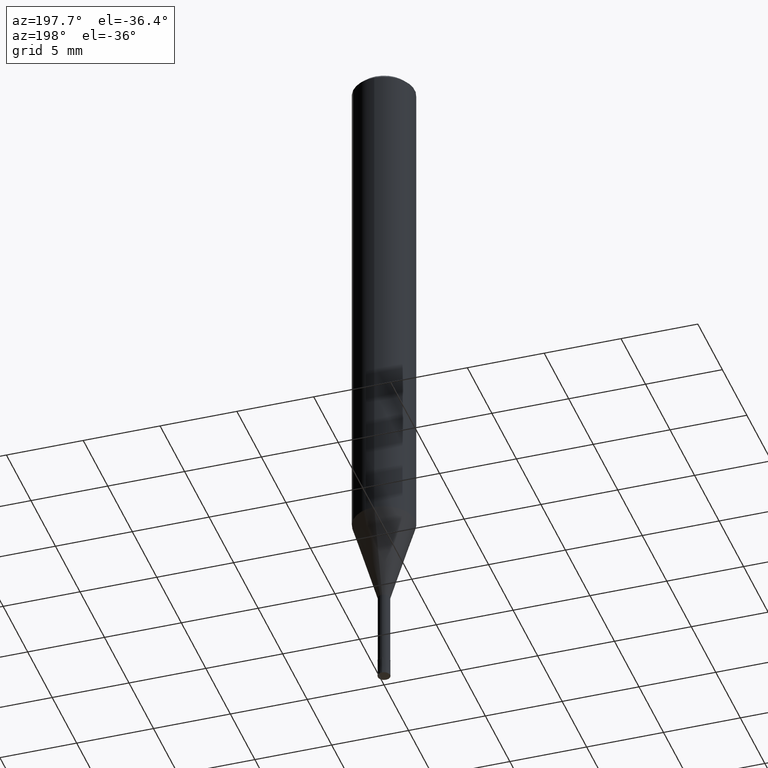
[diagram: clean part render]
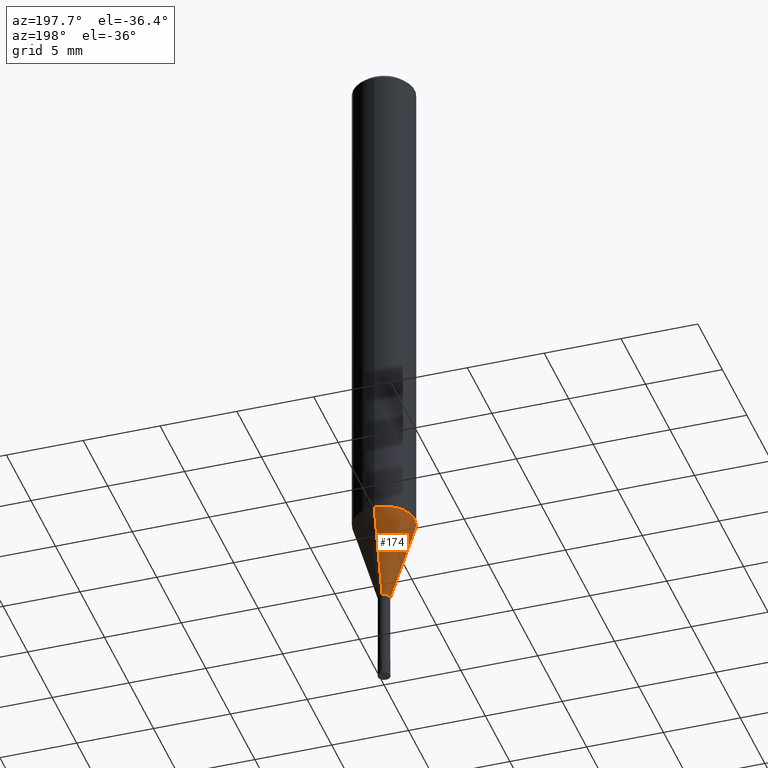
[diagram: same view with one face highlighted and labeled with its STEP entity id]
A machine part, auxiliary view. The second image highlights one B-rep face of the part: STEP entity #174.
In plain terms, the highlighted conical surface has half-angle 15.999 deg.
Its self-contained STEP definition (entity closure, byte-faithful):
#96=EDGE_CURVE('',#176,#168,#234,.T.);
#106=VERTEX_POINT('',#245);
#128=EDGE_CURVE('',#106,#206,#269,.T.);
#140=EDGE_CURVE('',#206,#176,#282,.T.);
#160=EDGE_CURVE('',#106,#168,#304,.T.);
#168=VERTEX_POINT('',#313);
#174=ADVANCED_FACE('',(#319),#320,.T.);
#176=VERTEX_POINT('',#322);
#206=VERTEX_POINT('',#359);
#234=LINE('',#381,#382);
#245=CARTESIAN_POINT('',(4.77535247673036E-017,-0.38995,-39.0));
#269=LINE('',#425,#426);
#282=CIRCLE('',#441,1.99995);
#304=CIRCLE('',#471,0.38995);
#313=CARTESIAN_POINT('',(0.0,0.38995,-39.0));
#319=FACE_OUTER_BOUND('',#489,.T.);
#320=CONICAL_SURFACE('',#490,1.19495,0.279240281890545);
#322=CARTESIAN_POINT('',(0.0,1.99995,-33.385));
#359=CARTESIAN_POINT('',(2.44915147732706E-016,-1.99995,-33.385));
#381=CARTESIAN_POINT('',(-1.46334336250005E-016,1.19495,-36.1925));
#382=VECTOR('',#551,1.0);
#425=CARTESIAN_POINT('',(1.46334336250005E-016,-1.19495,-36.1925));
#426=VECTOR('',#594,1.0);
#441=AXIS2_PLACEMENT_3D('',#605,#606,#607);
#471=AXIS2_PLACEMENT_3D('',#635,#636,#637);
#489=EDGE_LOOP('',(#651,#652,#653,#654));
#490=AXIS2_PLACEMENT_3D('',#655,#656,#657);
#551=DIRECTION('',(3.37532662235176E-017,-0.275625437661361,-0.961265113334497));
#594=DIRECTION('',(3.37532662235176E-017,-0.275625437661361,0.961265113334497));
#605=CARTESIAN_POINT('',(0.0,0.0,-33.385));
#606=DIRECTION('',(0.0,0.0,-1.0));
#607=DIRECTION('',(0.0,1.0,0.0));
#635=CARTESIAN_POINT('',(0.0,0.0,-39.0));
#636=DIRECTION('',(0.0,0.0,-1.0));
#637=DIRECTION('',(0.0,1.0,0.0));
#651=ORIENTED_EDGE('',*,*,#96,.T.);
#652=ORIENTED_EDGE('',*,*,#160,.F.);
#653=ORIENTED_EDGE('',*,*,#128,.T.);
#654=ORIENTED_EDGE('',*,*,#140,.T.);
#655=CARTESIAN_POINT('',(0.0,0.0,-36.1925));
#656=DIRECTION('',(-0.0,-0.0,1.0));
#657=DIRECTION('',(0.0,1.0,0.0));